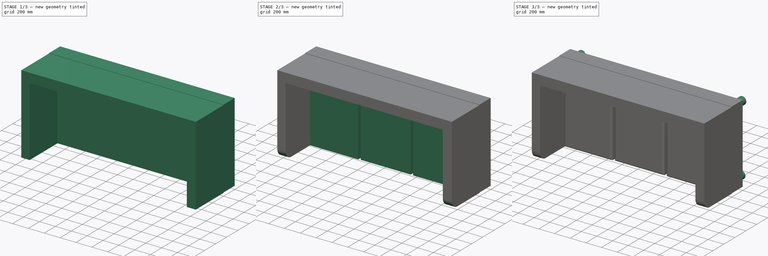
[diagram: build sequence overview — one tinted view per stage of 3, left to right]
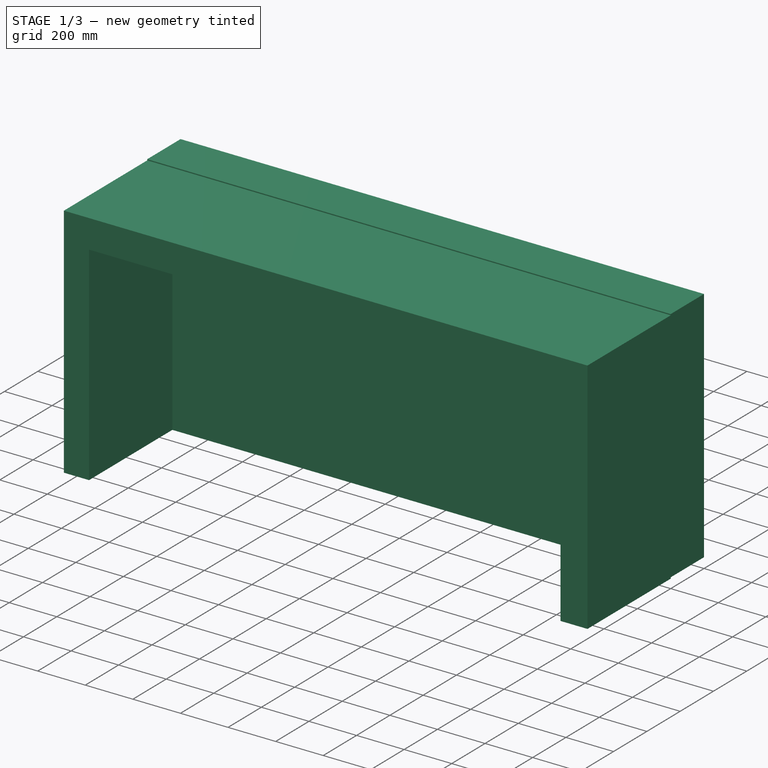
[diagram: stage 1 of 3 — iso view after this stage's code; geometry added in this stage tinted green]
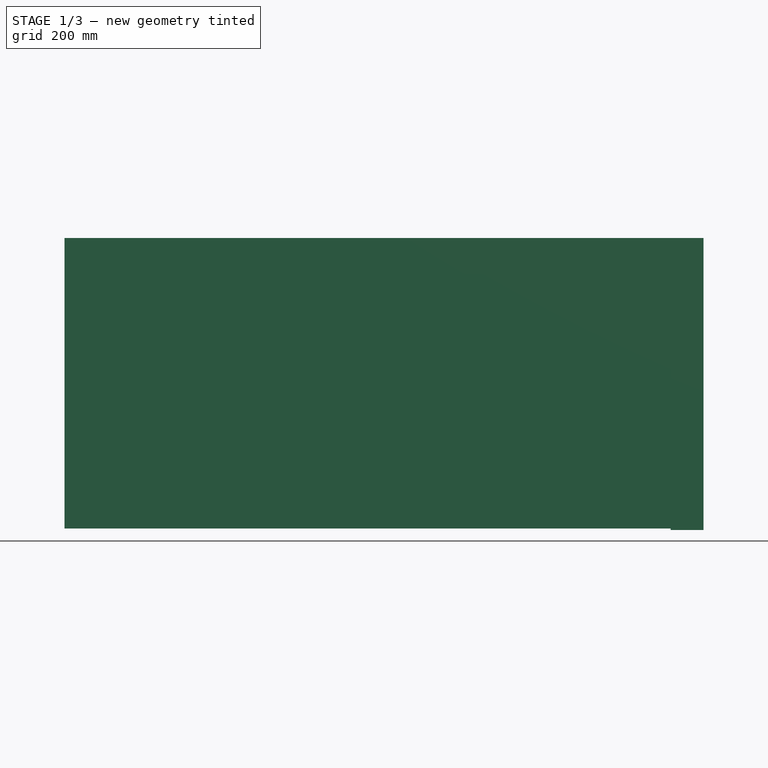
[diagram: stage 1 of 3 — front view after this stage's code; geometry added in this stage tinted green]
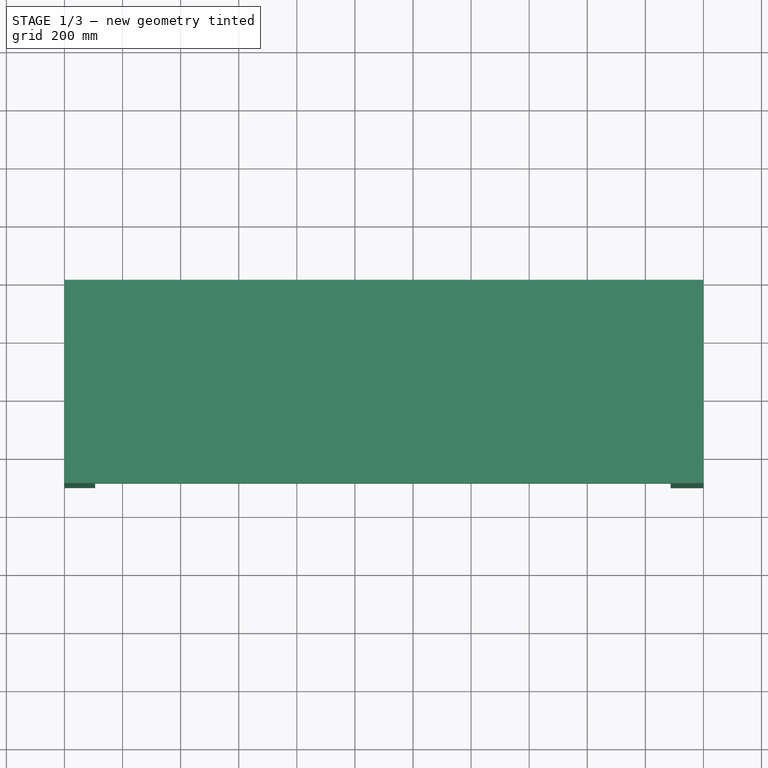
[diagram: stage 1 of 3 — top view after this stage's code; geometry added in this stage tinted green]
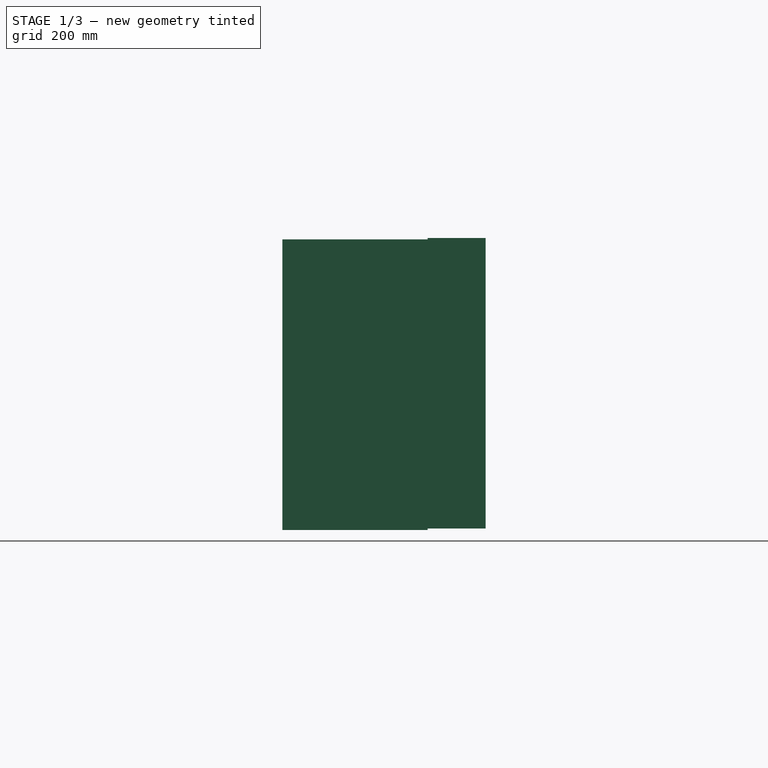
[diagram: stage 1 of 3 — right view after this stage's code; geometry added in this stage tinted green]
FCSTD DOCUMENT  (FreeCAD 1.0R39319 (Git))
Label: sofa-3-seater
License: All rights reserved
LicenseURL: https://en.wikipedia.org/wiki/All_rights_reserved
objects: Sketcher::SketchObject×4, PartDesign::Pad×4, PartDesign::Fillet×2, PartDesign::Body×1
note: 27 computed .brp shape members not serialized (recipe doc carries the construction recipe); baked Part::Feature solids carry a one-line shape summary decoded from their .brp

FEATURE [Sketcher::SketchObject] Sketch
  ArcFitTolerance = 1e-06
  AttachmentSupport = -> [XZ_Plane]
  FullyConstrained = true
  MakeInternals = false
  MapMode = 5
  Placement = pos=(0,0,0) rot=(1,0,0;1.5708rad)
  sketch-geometry (4):
    g0: LineSegment StartX=0 StartY=0 StartZ=0 EndX=2200 EndY=0 EndZ=0
    g1: LineSegment StartX=2200 StartY=0 StartZ=0 EndX=2200 EndY=1000 EndZ=0
    g2: LineSegment StartX=2200 StartY=1000 StartZ=0 EndX=0 EndY=1000 EndZ=0
    g3: LineSegment StartX=0 StartY=1000 StartZ=0 EndX=0 EndY=0 EndZ=0
  constraints (11):
    c: Coincident(g0,g1)
    c: Coincident(g1,g2)
    c: Coincident(g2,g3)
    c: Coincident(g3,g0)
    c: Horizontal(g0)
    c: Horizontal(g2)
    c: Vertical(g1)
    c: Vertical(g3)
    c: Distance(g1,g3) = 2200
    c: Distance(g0,g2) = 1000
    c: Coincident(g0,g-1)
FEATURE [PartDesign::Pad] Pad
  Direction = (0,-1,2e-16)
  Length = 200
  Length2 = 10
  Placement = pos=(0,0,0) rot=(1,0,0;1.5708rad)
  Profile = -> Sketch
  ReferenceAxis = -> Sketch [N_Axis]
  Refine = true
  Suppressed = false
  Type = 0
FEATURE [Sketcher::SketchObject] Sketch001
  ArcFitTolerance = 1e-06
  AttachmentSupport = -> [Pad]
  FullyConstrained = false
  MakeInternals = false
  MapMode = 5
  Placement = pos=(0,-200,0) rot=(1,0,0;1.5708rad)
  sketch-geometry (12):
    g0: LineSegment StartX=0 StartY=0 StartZ=0 EndX=105.556 EndY=0 EndZ=0
    g1: LineSegment StartX=105.556 StartY=0 StartZ=0 EndX=105.556 EndY=995.513 EndZ=0
    g2: LineSegment StartX=105.556 StartY=995.513 StartZ=0 EndX=0 EndY=995.513 EndZ=0
    g3: LineSegment StartX=0 StartY=995.513 StartZ=0 EndX=0 EndY=0 EndZ=0
    g4: LineSegment StartX=2200.36 StartY=-4.94073 StartZ=0 EndX=2200.36 EndY=995.513 EndZ=0
    g5: LineSegment StartX=2200.36 StartY=995.513 StartZ=0 EndX=2087.04 EndY=995.513 EndZ=0
    g6: LineSegment StartX=2087.04 StartY=995.513 StartZ=0 EndX=2087.04 EndY=-4.94073 EndZ=0
    g7: LineSegment StartX=2087.04 StartY=-4.94073 StartZ=0 EndX=2200.36 EndY=-4.94073 EndZ=0
    g8: LineSegment StartX=105.556 StartY=995.513 StartZ=0 EndX=105.556 EndY=875.718 EndZ=0
    g9: LineSegment StartX=105.556 StartY=875.718 StartZ=0 EndX=2087.04 EndY=875.718 EndZ=0
    g10: LineSegment StartX=2087.04 StartY=875.718 StartZ=0 EndX=2087.04 EndY=995.513 EndZ=0
    g11: LineSegment StartX=2087.04 StartY=995.513 StartZ=0 EndX=105.556 EndY=995.513 EndZ=0
  constraints (27):
    c: Coincident(g0,g1)
    c: Coincident(g1,g2)
    c: Coincident(g2,g3)
    c: Coincident(g3,g0)
    c: Horizontal(g0)
    c: Horizontal(g2)
    c: Vertical(g1)
    c: Vertical(g3)
    c: Coincident(g0,g-1)
    c: Coincident(g4,g5)
    c: Coincident(g5,g6)
    c: Coincident(g6,g7)
    c: Coincident(g7,g4)
    c: Vertical(g4)
    c: Vertical(g6)
    c: Horizontal(g5)
    c: Horizontal(g7)
    c: Coincident(g8,g9)
    c: Coincident(g9,g10)
    c: Coincident(g10,g11)
    c: Coincident(g11,g8)
    c: Vertical(g8)
    c: Vertical(g10)
    c: Horizontal(g9)
    c: Horizontal(g11)
    c: Coincident(g8,g1)
    c: PointOnObject(g9,g6)
FEATURE [PartDesign::Pad] Pad001
  BaseFeature = -> Pad
  Direction = (0,-1,2e-16)
  Length = 500
  Length2 = 10
  Placement = pos=(0,0,0) rot=(1,0,0;1.5708rad)
  Profile = -> Sketch001
  ReferenceAxis = -> Sketch001 [N_Axis]
  Refine = true
  Suppressed = false
  Type = 0
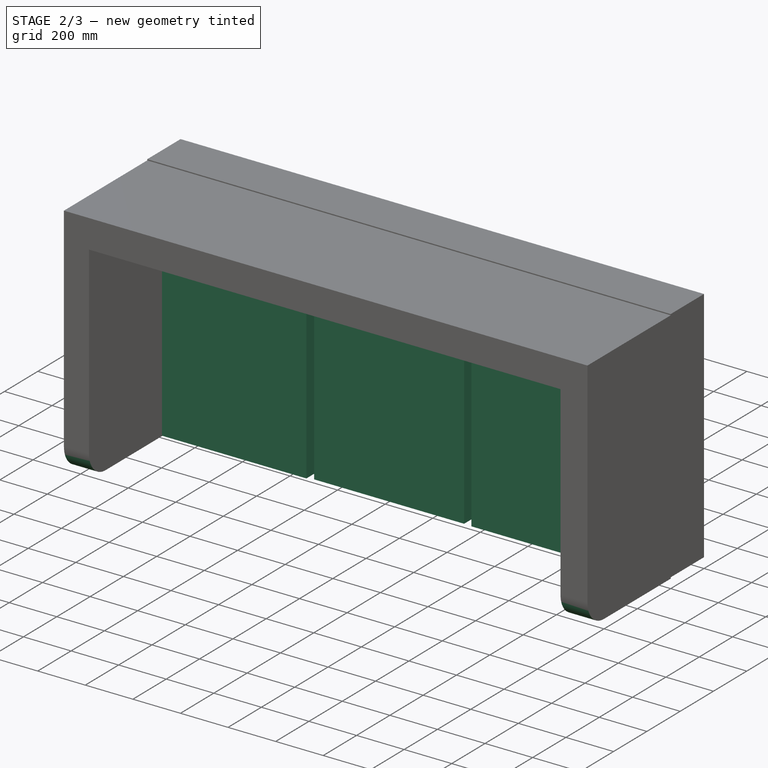
[diagram: stage 2 of 3 — iso view after this stage's code; geometry added in this stage tinted green]
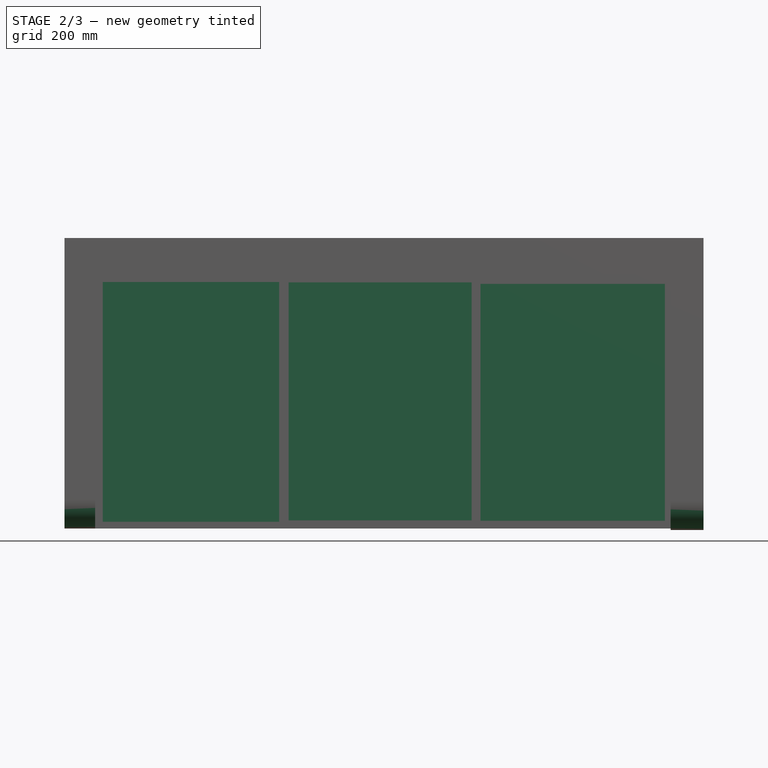
[diagram: stage 2 of 3 — front view after this stage's code; geometry added in this stage tinted green]
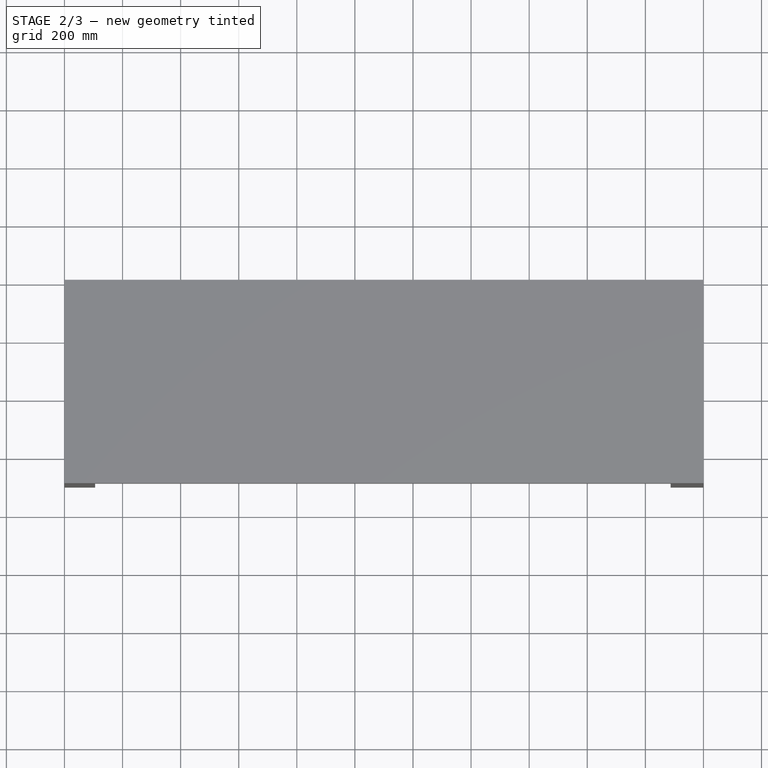
[diagram: stage 2 of 3 — top view after this stage's code; geometry added in this stage tinted green]
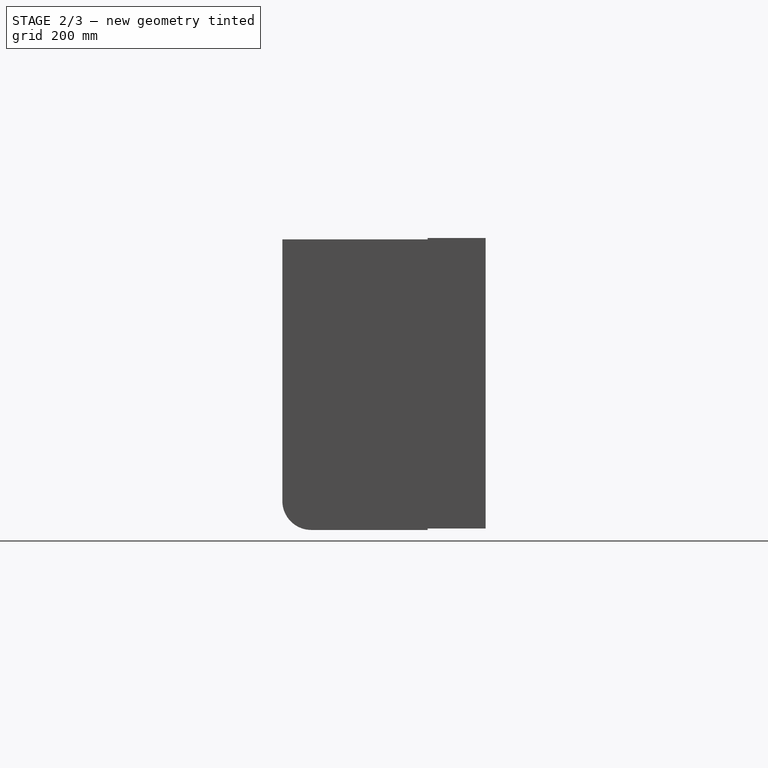
[diagram: stage 2 of 3 — right view after this stage's code; geometry added in this stage tinted green]
FEATURE [PartDesign::Fillet] Fillet
  Base = -> Pad001 [Edge14,Edge11]
  BaseFeature = -> Pad001
  Placement = pos=(0,0,0) rot=(1,0,0;1.5708rad)
  Radius = 100
  Refine = true
  SupportTransform = false
  Suppressed = false
  UseAllEdges = false
FEATURE [Sketcher::SketchObject] Sketch002
  ArcFitTolerance = 1e-06
  AttachmentSupport = -> [Fillet]
  FullyConstrained = false
  MakeInternals = false
  MapMode = 5
  Placement = pos=(0,-200,0) rot=(1,0,0;1.5708rad)
  sketch-geometry (12):
    g0: LineSegment StartX=132.028 StartY=848.694 StartZ=0 EndX=132.028 EndY=23.0973 EndZ=0
    g1: LineSegment StartX=132.028 StartY=23.0973 StartZ=0 EndX=738.988 EndY=23.0973 EndZ=0
    g2: LineSegment StartX=738.988 StartY=23.0973 StartZ=0 EndX=738.988 EndY=848.694 EndZ=0
    g3: LineSegment StartX=738.988 StartY=848.694 StartZ=0 EndX=132.028 EndY=848.694 EndZ=0
    g4: LineSegment StartX=771.621 StartY=28.1802 StartZ=0 EndX=1401.97 EndY=28.1802 EndZ=0
    g5: LineSegment StartX=1401.97 StartY=28.1802 StartZ=0 EndX=1401.97 EndY=847.25 EndZ=0
    g6: LineSegment StartX=1401.97 StartY=847.25 StartZ=0 EndX=771.621 EndY=847.25 EndZ=0
    g7: LineSegment StartX=771.621 StartY=847.25 StartZ=0 EndX=771.621 EndY=28.1802 EndZ=0
    g8: LineSegment StartX=1432.46 StartY=842.376 StartZ=0 EndX=1432.46 EndY=26.569 EndZ=0
    g9: LineSegment StartX=1432.46 StartY=26.569 StartZ=0 EndX=2067.12 EndY=26.569 EndZ=0
    g10: LineSegment StartX=2067.12 StartY=26.569 StartZ=0 EndX=2067.12 EndY=842.376 EndZ=0
    g11: LineSegment StartX=2067.12 StartY=842.376 StartZ=0 EndX=1432.46 EndY=842.376 EndZ=0
  constraints (24):
    c: Coincident(g0,g1)
    c: Coincident(g1,g2)
    c: Coincident(g2,g3)
    c: Coincident(g3,g0)
    c: Vertical(g0)
    c: Vertical(g2)
    c: Horizontal(g1)
    c: Horizontal(g3)
    c: Coincident(g4,g5)
    c: Coincident(g5,g6)
    c: Coincident(g6,g7)
    c: Coincident(g7,g4)
    c: Horizontal(g4)
    c: Horizontal(g6)
    c: Vertical(g5)
    c: Vertical(g7)
    c: Coincident(g8,g9)
    c: Coincident(g9,g10)
    c: Coincident(g10,g11)
    c: Coincident(g11,g8)
    c: Vertical(g8)
    c: Vertical(g10)
    c: Horizontal(g9)
    c: Horizontal(g11)
FEATURE [PartDesign::Pad] Pad002
  BaseFeature = -> Fillet
  Direction = (0,-1,2e-16)
  Length = 100
  Length2 = 10
  Placement = pos=(0,0,0) rot=(1,0,0;1.5708rad)
  Profile = -> Sketch002
  ReferenceAxis = -> Sketch002 [N_Axis]
  Refine = true
  Suppressed = false
  Type = 0
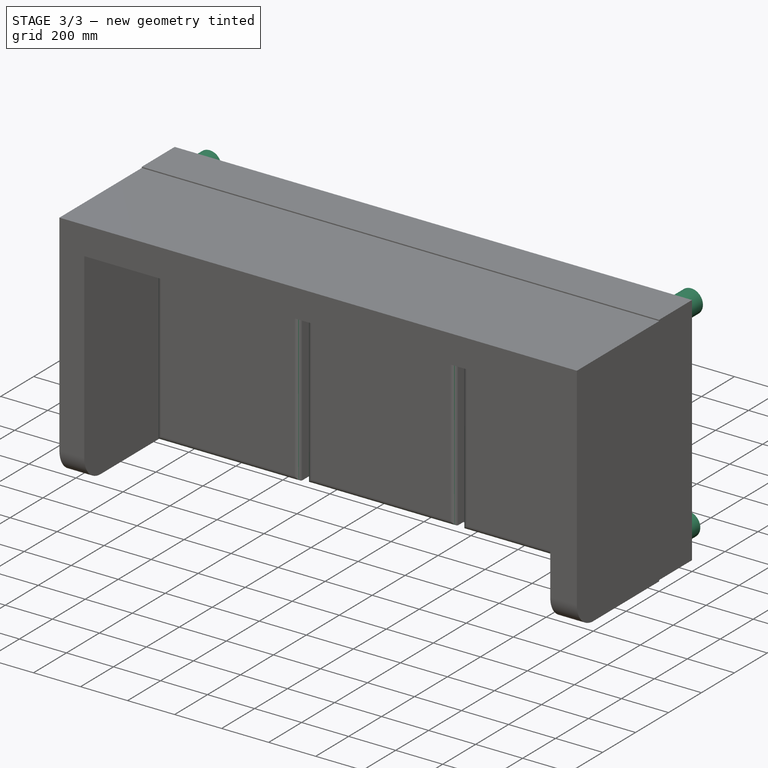
[diagram: stage 3 of 3 — iso view after this stage's code; geometry added in this stage tinted green]
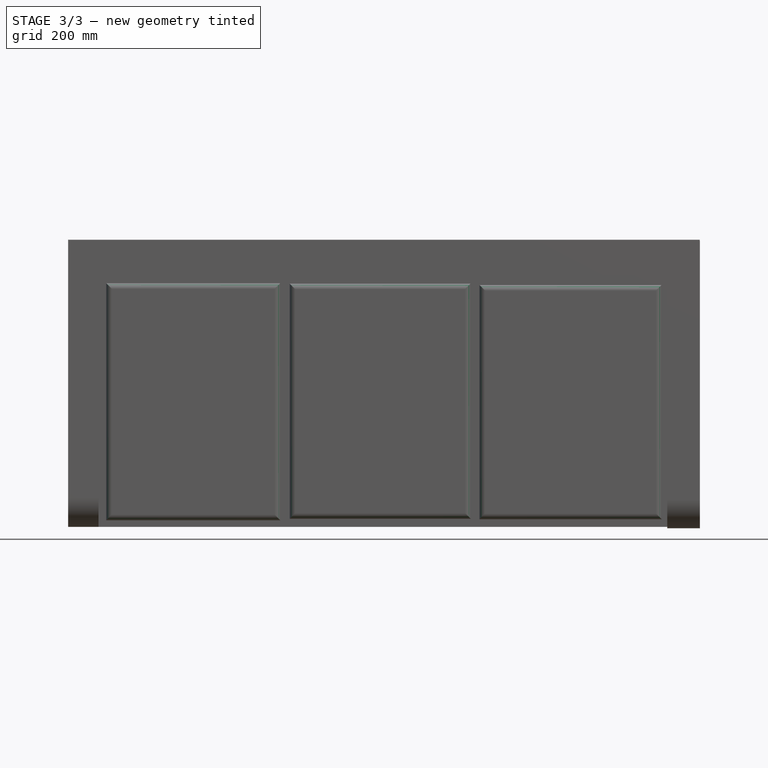
[diagram: stage 3 of 3 — front view after this stage's code; geometry added in this stage tinted green]
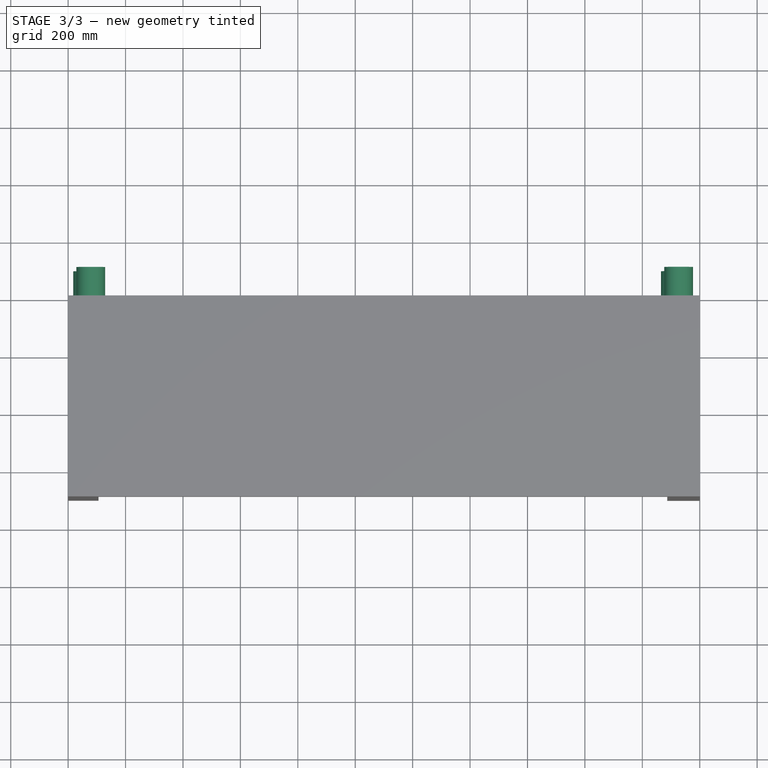
[diagram: stage 3 of 3 — top view after this stage's code; geometry added in this stage tinted green]
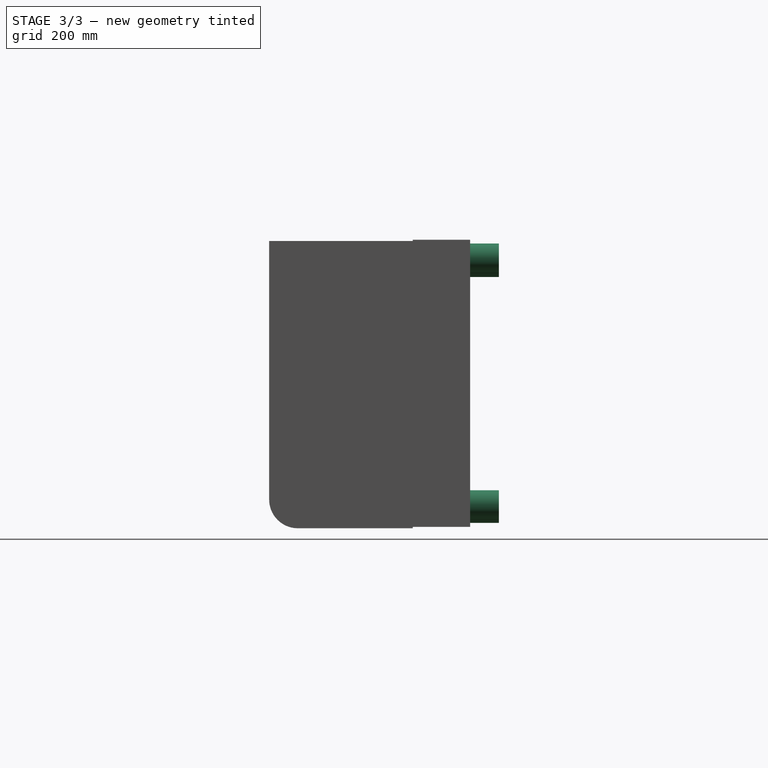
[diagram: stage 3 of 3 — right view after this stage's code; geometry added in this stage tinted green]
FEATURE [PartDesign::Fillet] Fillet001
  Base = -> Pad002 [Edge72,Edge65,Edge56,Edge57,Edge52,Edge54,Edge60,Edge62,Edge64,Edge73,Edge70,Edge68]
  BaseFeature = -> Pad002
  Placement = pos=(0,0,0) rot=(1,0,0;1.5708rad)
  Radius = 20
  Refine = true
  SupportTransform = false
  Suppressed = false
  UseAllEdges = false
FEATURE [Sketcher::SketchObject] Sketch003
  ArcFitTolerance = 1e-06
  AttachmentSupport = -> [Fillet001]
  FullyConstrained = false
  MakeInternals = false
  MapMode = 5
  Placement = pos=(0,1.11e-13,0) rot=(-1,0,0;1.5708rad)
  sketch-geometry (4):
    g0: Circle CenterX=67.5911 CenterY=-63.5579 CenterZ=0 NormalX=0 NormalY=0 NormalZ=1 AngleXU=0 Radius=50
    g1: Circle CenterX=78.8258 CenterY=-920.208 CenterZ=0 NormalX=0 NormalY=0 NormalZ=1 AngleXU=0 Radius=50
    g2: Circle CenterX=2115.13 CenterY=-77.6013 CenterZ=0 NormalX=0 NormalY=0 NormalZ=1 AngleXU=0 Radius=50
    g3: Circle CenterX=2126.36 CenterY=-937.06 CenterZ=0 NormalX=0 NormalY=0 NormalZ=1 AngleXU=0 Radius=50
  constraints (4):
    c: Diameter(g0) = 100
    c: Diameter(g1) = 100
    c: Diameter(g2) = 100
    c: Diameter(g3) = 100
FEATURE [PartDesign::Pad] Pad003
  BaseFeature = -> Fillet001
  Direction = (0,1,2e-16)
  Length = 100
  Length2 = 10
  Placement = pos=(0,0,0) rot=(1,0,0;1.5708rad)
  Profile = -> Sketch003
  ReferenceAxis = -> Sketch003 [N_Axis]
  Refine = true
  Suppressed = false
  Type = 0
FEATURE [PartDesign::Body] Body
  AllowCompound = false
  Group = -> [Sketch,Pad,Sketch001,Pad001,Fillet,Sketch002,Pad002,Fillet001,Sketch003,Pad003]
  Origin = -> Origin
  Tip = -> Pad003
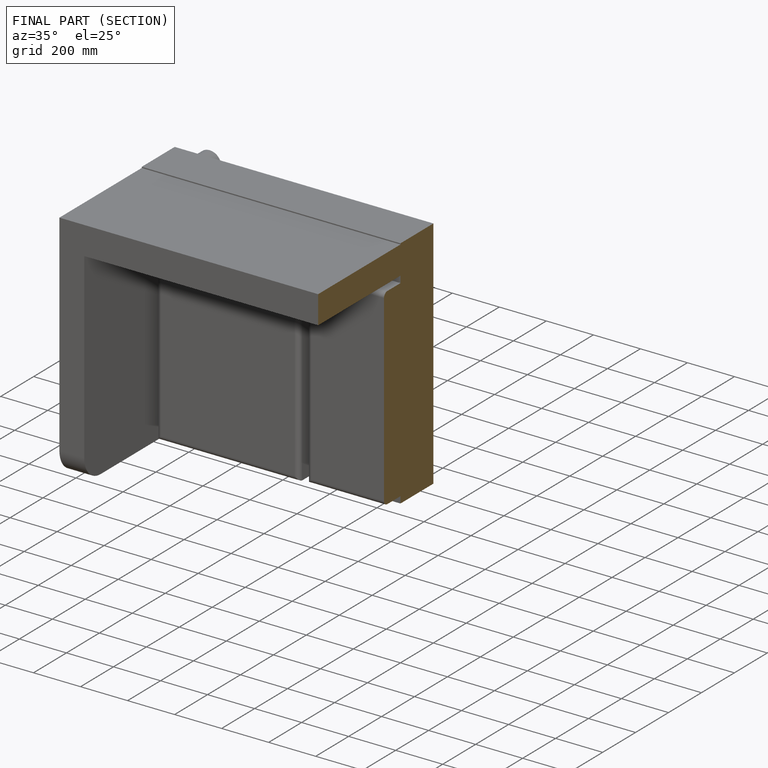
[diagram: finished part — half-section view (interior)]
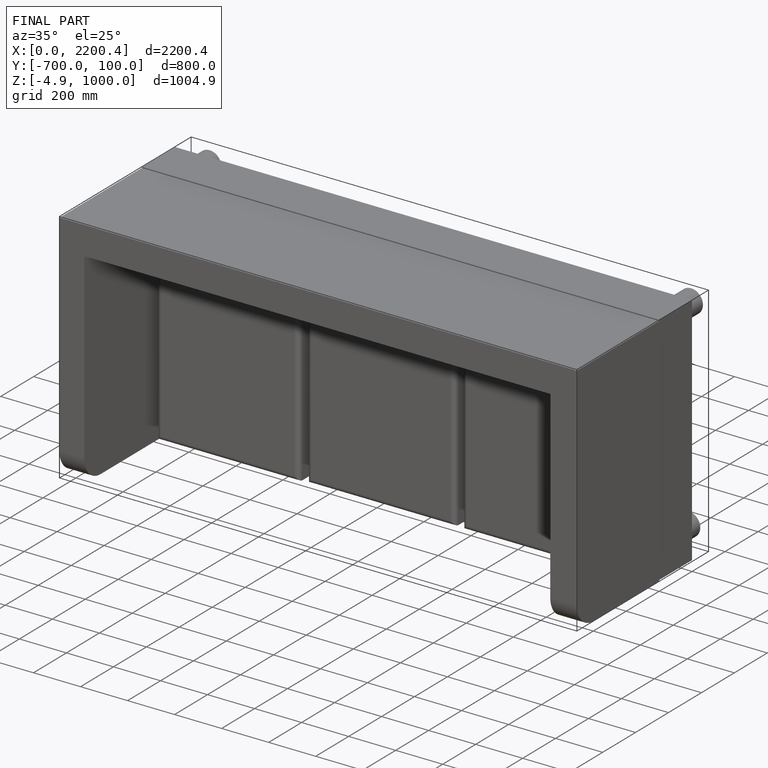
[diagram: finished part — iso view with bounding-box wireframe]
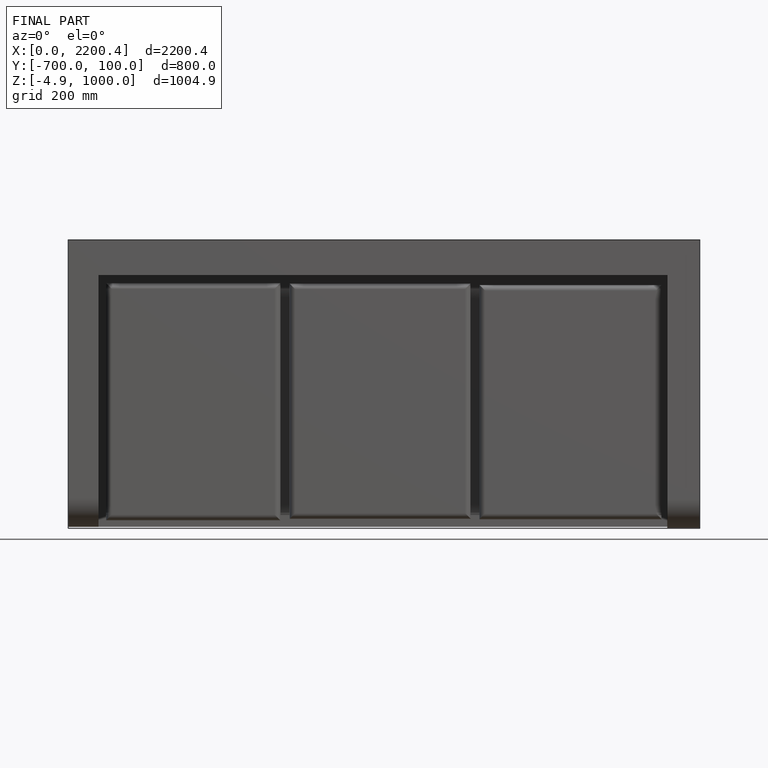
[diagram: finished part — front view with bounding-box wireframe]
